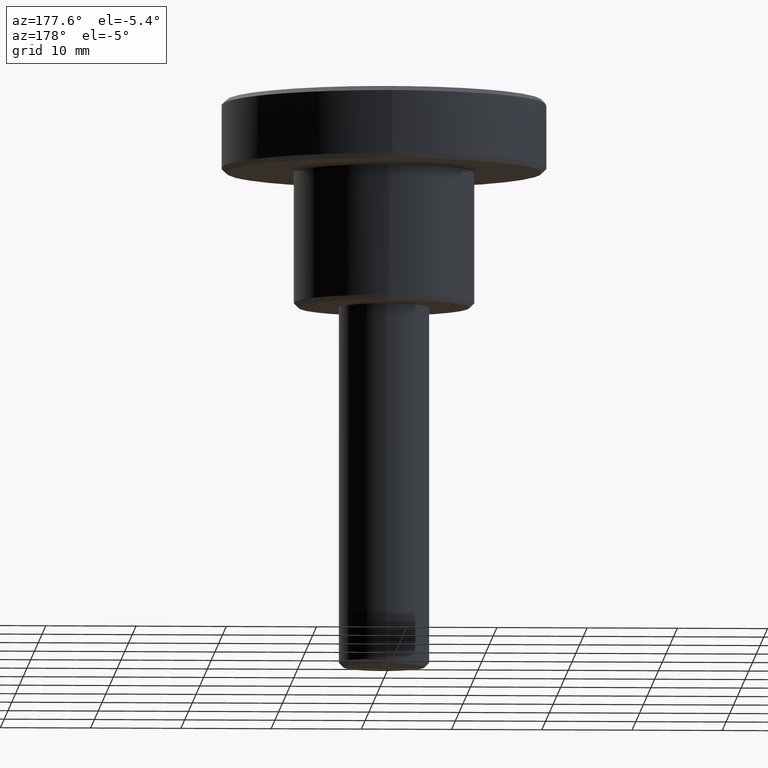
[diagram: clean part render]
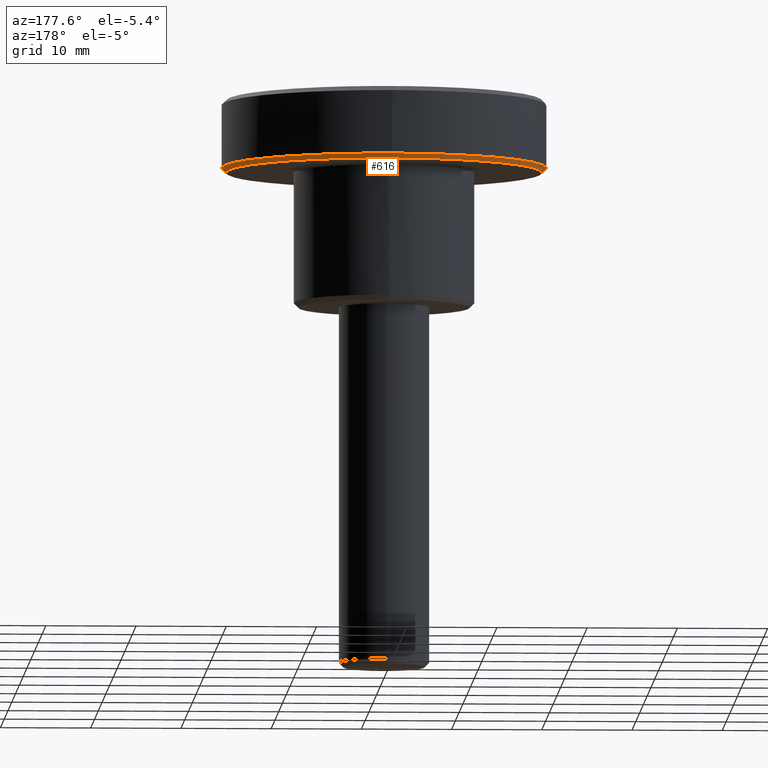
[diagram: same view with one face highlighted and labeled with its STEP entity id]
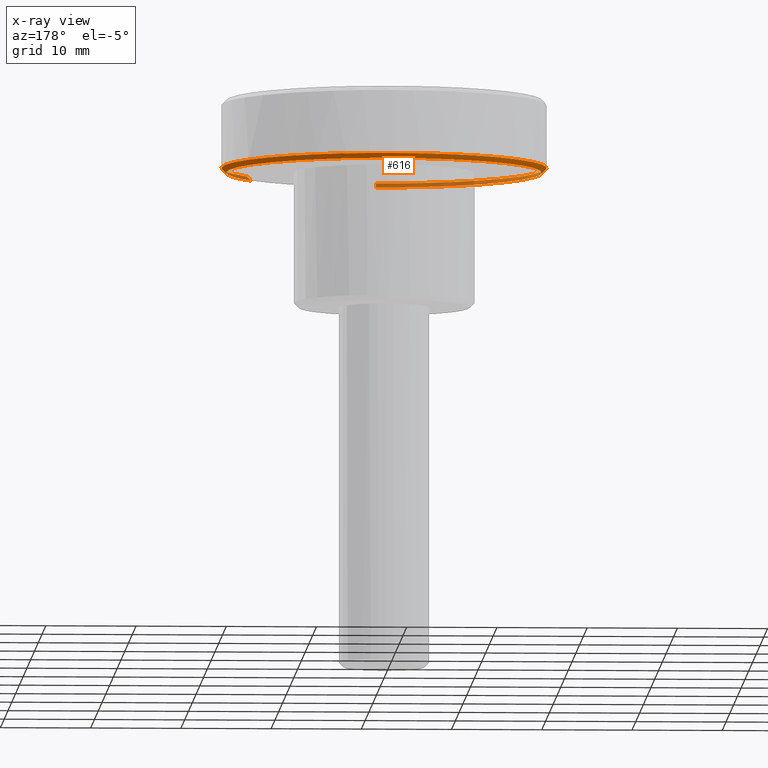
[diagram: x-ray of the same camera — body ghosted, the highlighted face saturated]
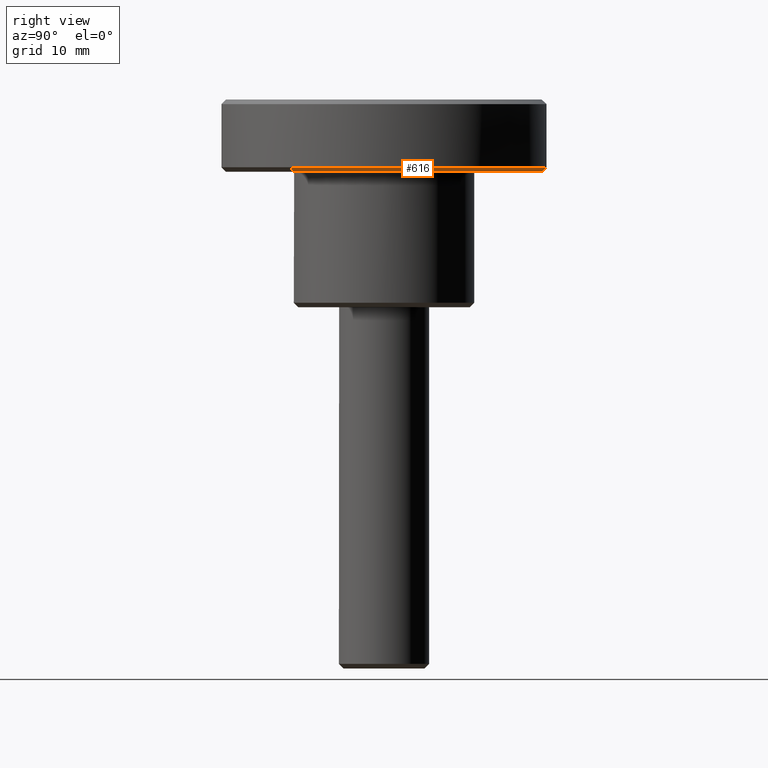
[diagram: same view with one face highlighted and labeled with its STEP entity id]
A machine part, auxiliary view. The second image highlights one B-rep face of the part: STEP entity #616.
The next image is the same camera in x-ray: the body ghosted, the highlighted face saturated — about 17% of this face is hidden behind the body in this view.
A second angle (right view) of the same face is appended — the face is thin or edge-on in the first view.
In plain terms, the highlighted face is a freeform B-spline surface patch.
Its self-contained STEP definition (entity closure, byte-faithful):
#461=CARTESIAN_POINT('',(14.319921146030703,-10.037555211378052,14.987499999999999));
#462=CARTESIAN_POINT('',(17.535725391208214,-5.449778383031156,14.987499999999997));
#463=CARTESIAN_POINT('',(17.486834129584690,0.152605289527813,14.987500000000001));
#464=CARTESIAN_POINT('',(17.334228840056877,17.639439419112509,14.987499999999997));
#465=CARTESIAN_POINT('',(-0.152605289527813,17.486834129584690,14.987500000000001));
#466=CARTESIAN_POINT('',(-17.639439419112509,17.334228840056877,14.987499999999997));
#467=CARTESIAN_POINT('',(-17.486834129584690,-0.152605289527813,14.987500000000001));
#468=CARTESIAN_POINT('',(-17.334228840056877,-17.639439419112509,14.987499999999997));
#469=CARTESIAN_POINT('',(0.152605289527813,-17.486834129584690,14.987500000000001));
#470=CARTESIAN_POINT('',(14.750081750864162,-10.339076482113015,15.512812500000001));
#471=CARTESIAN_POINT('',(18.062486548867700,-5.613485985995353,15.512812500000004));
#472=CARTESIAN_POINT('',(18.012126627294400,0.157189447706803,15.512812500000001));
#473=CARTESIAN_POINT('',(17.854937179587598,18.169316075001209,15.512812499999999));
#474=CARTESIAN_POINT('',(-0.157189447706803,18.012126627294400,15.512812500000001));
#475=CARTESIAN_POINT('',(-18.169316075001209,17.854937179587598,15.512812499999999));
#476=CARTESIAN_POINT('',(-18.012126627294400,-0.157189447706803,15.512812500000001));
#477=CARTESIAN_POINT('',(-17.854937179587598,-18.169316075001209,15.512812499999999));
#478=CARTESIAN_POINT('',(0.157189447706803,-18.012126627294400,15.512812500000001));
#486=(BOUNDED_SURFACE()B_SPLINE_SURFACE(2,1,((#461,#470),(#462,#471),(#463,#472),(#464,#473),(#465,#474),(#466,#475),(#467,#476),(#468,#477),(#469,#478)),.UNSPECIFIED.,.F.,.F.,.U.)B_SPLINE_SURFACE_WITH_KNOTS((3,2,2,2,3),(2,2),(0.0,11.937841974373820,41.782446910308373,71.627051846242935,101.471656782177500),(0.0,1.0),.UNSPECIFIED.)GEOMETRIC_REPRESENTATION_ITEM()RATIONAL_B_SPLINE_SURFACE(((0.859411254969543,0.859411254969543),(0.882842712474619,0.882842712474619),(1.0,1.0),(0.707106781186548,0.707106781186548),(1.0,1.0),(0.707106781186548,0.707106781186548),(1.0,1.0),(0.707106781186548,0.707106781186548),(1.0,1.0)))REPRESENTATION_ITEM('')SURFACE());
#487=CARTESIAN_POINT('',(17.500000000000000,0.0,15.0));
#488=VERTEX_POINT('',#487);
#489=CARTESIAN_POINT('',(14.330156972431750,-10.044730018546430,15.000000000000631));
#490=VERTEX_POINT('',#489);
#491=CARTESIAN_POINT('',(17.500000000000000,0.0,15.0));
#492=CARTESIAN_POINT('',(17.499999999999993,-5.522523042442423,14.999999999999998));
#493=CARTESIAN_POINT('',(14.330156972431745,-10.044730018546428,15.000000000000631));
#501=(BOUNDED_CURVE()B_SPLINE_CURVE(2,(#491,#492,#493),.UNSPECIFIED.,.F.,.U.)B_SPLINE_CURVE_WITH_KNOTS((3,3),(0.0,0.098673726203125),.UNSPECIFIED.)CURVE()GEOMETRIC_REPRESENTATION_ITEM()RATIONAL_B_SPLINE_CURVE((1.0,0.884396538880198,0.860049271925747))REPRESENTATION_ITEM(''));
#502=EDGE_CURVE('',#488,#490,#501,.T.);
#503=ORIENTED_EDGE('',*,*,#502,.F.);
#504=CARTESIAN_POINT('',(-17.500000000000000,0.0,15.0));
#505=VERTEX_POINT('',#504);
#506=CARTESIAN_POINT('',(-17.500000000000000,0.0,15.0));
#507=CARTESIAN_POINT('',(-17.499999999999996,17.499999999999996,14.999999999999995));
#508=CARTESIAN_POINT('',(0.0,17.500000000000000,15.0));
#509=CARTESIAN_POINT('',(17.499999999999996,17.499999999999996,14.999999999999995));
#510=CARTESIAN_POINT('',(17.500000000000000,0.0,15.0));
#518=(BOUNDED_CURVE()B_SPLINE_CURVE(2,(#506,#507,#508,#509,#510),.UNSPECIFIED.,.F.,.U.)B_SPLINE_CURVE_WITH_KNOTS((3,2,3),(0.500000000000000,0.750000000000000,1.0),.UNSPECIFIED.)CURVE()GEOMETRIC_REPRESENTATION_ITEM()RATIONAL_B_SPLINE_CURVE((1.0,0.707106781186548,1.0,0.707106781186548,1.0))REPRESENTATION_ITEM(''));
#519=EDGE_CURVE('',#505,#488,#518,.T.);
#520=ORIENTED_EDGE('',*,*,#519,.F.);
#521=CARTESIAN_POINT('',(0.152714371282345,-17.499333653630728,15.000000000008260));
#522=VERTEX_POINT('',#521);
#523=CARTESIAN_POINT('',(0.152714371282345,-17.499333653630728,15.000000000008264));
#524=CARTESIAN_POINT('',(0.076358639423010,-17.500000000000004,15.000000000000004));
#525=CARTESIAN_POINT('',(0.0,-17.500000000000000,15.0));
#526=CARTESIAN_POINT('',(-17.499999999999996,-17.499999999999996,14.999999999999995));
#527=CARTESIAN_POINT('',(-17.500000000000000,0.0,15.0));
#535=(BOUNDED_CURVE()B_SPLINE_CURVE(2,(#523,#524,#525,#526,#527),.UNSPECIFIED.,.F.,.U.)B_SPLINE_CURVE_WITH_KNOTS((3,2,3),(0.248460105663790,0.250000000000000,0.500000000000000),.UNSPECIFIED.)CURVE()GEOMETRIC_REPRESENTATION_ITEM()RATIONAL_B_SPLINE_CURVE((0.996414028097576,0.998195901564940,1.0,0.707106781186548,1.0))REPRESENTATION_ITEM(''));
#536=EDGE_CURVE('',#522,#505,#535,.T.);
#537=ORIENTED_EDGE('',*,*,#536,.F.);
#538=CARTESIAN_POINT('',(0.157077638971878,-17.999314615155239,15.500000000000149));
#539=VERTEX_POINT('',#538);
#540=CARTESIAN_POINT('',(0.152714371282345,-17.499333653630728,15.000000000008260));
#541=CARTESIAN_POINT('',(0.157077638971878,-17.999314615155239,15.500000000000149));
#542=QUASI_UNIFORM_CURVE('',1,(#540,#541),.UNSPECIFIED.,.F.,.U.);
#543=EDGE_CURVE('',#522,#539,#542,.T.);
#544=ORIENTED_EDGE('',*,*,#543,.T.);
#545=CARTESIAN_POINT('',(-18.0,0.0,15.500000000000000));
#546=VERTEX_POINT('',#545);
#547=CARTESIAN_POINT('',(-18.0,0.0,15.500000000000000));
#548=CARTESIAN_POINT('',(-18.000000000000007,-18.000000000000007,15.500000000000005));
#549=CARTESIAN_POINT('',(0.0,-18.0,15.500000000000000));
#550=CARTESIAN_POINT('',(0.078540314773772,-18.000000000000007,15.499999999999998));
#551=CARTESIAN_POINT('',(0.157077638971878,-17.999314615155246,15.500000000000144));
#559=(BOUNDED_CURVE()B_SPLINE_CURVE(2,(#547,#548,#549,#550,#551),.UNSPECIFIED.,.F.,.U.)B_SPLINE_CURVE_WITH_KNOTS((3,2,3),(0.0,0.250000000000000,0.251539894335010),.UNSPECIFIED.)CURVE()GEOMETRIC_REPRESENTATION_ITEM()RATIONAL_B_SPLINE_CURVE((1.0,0.707106781186547,1.0,0.998195901566346,0.996414028100354))REPRESENTATION_ITEM(''));
#560=EDGE_CURVE('',#546,#539,#559,.T.);
#561=ORIENTED_EDGE('',*,*,#560,.F.);
#562=CARTESIAN_POINT('',(-0.157060157866993,17.999314767693381,15.500000000000000));
#563=VERTEX_POINT('',#562);
#564=CARTESIAN_POINT('',(-0.157060157866993,17.999314767693381,15.500000000000004));
#565=CARTESIAN_POINT('',(-18.000000000000004,17.843619121251677,15.500000000000002));
#566=CARTESIAN_POINT('',(-18.0,0.0,15.500000000000000));
#574=(BOUNDED_CURVE()B_SPLINE_CURVE(2,(#564,#565,#566),.UNSPECIFIED.,.F.,.U.)B_SPLINE_CURVE_WITH_KNOTS((3,3),(0.751539723263430,1.0),.UNSPECIFIED.)CURVE()GEOMETRIC_REPRESENTATION_ITEM()RATIONAL_B_SPLINE_CURVE((0.996414424008193,0.708910679197379,1.0))REPRESENTATION_ITEM(''));
#575=EDGE_CURVE('',#563,#546,#574,.T.);
#576=ORIENTED_EDGE('',*,*,#575,.F.);
#577=CARTESIAN_POINT('',(18.0,0.0,15.500000000000000));
#578=VERTEX_POINT('',#577);
#579=CARTESIAN_POINT('',(18.0,0.0,15.500000000000000));
#580=CARTESIAN_POINT('',(18.000000000000007,18.000000000000007,15.500000000000005));
#581=CARTESIAN_POINT('',(0.0,18.0,15.500000000000000));
#582=CARTESIAN_POINT('',(-0.078531573721610,18.000000000000004,15.500000000000004));
#583=CARTESIAN_POINT('',(-0.157060157866993,17.999314767693381,15.500000000000004));
#591=(BOUNDED_CURVE()B_SPLINE_CURVE(2,(#579,#580,#581,#582,#583),.UNSPECIFIED.,.F.,.U.)B_SPLINE_CURVE_WITH_KNOTS((3,2,3),(0.500000000000000,0.750000000000000,0.751539723263430),.UNSPECIFIED.)CURVE()GEOMETRIC_REPRESENTATION_ITEM()RATIONAL_B_SPLINE_CURVE((1.0,0.707106781186547,1.0,0.998196101989168,0.996414424008193))REPRESENTATION_ITEM(''));
#592=EDGE_CURVE('',#578,#563,#591,.T.);
#593=ORIENTED_EDGE('',*,*,#592,.F.);
#594=CARTESIAN_POINT('',(14.739590028784630,-10.331722304794230,15.500000000000799));
#595=VERTEX_POINT('',#594);
#596=CARTESIAN_POINT('',(14.739590028784635,-10.331722304794228,15.500000000000808));
#597=CARTESIAN_POINT('',(18.000000000000007,-5.680309415088353,15.499999999999996));
#598=CARTESIAN_POINT('',(18.0,0.0,15.500000000000000));
#606=(BOUNDED_CURVE()B_SPLINE_CURVE(2,(#596,#597,#598),.UNSPECIFIED.,.F.,.U.)B_SPLINE_CURVE_WITH_KNOTS((3,3),(0.401326273796802,0.500000000000000),.UNSPECIFIED.)CURVE()GEOMETRIC_REPRESENTATION_ITEM()RATIONAL_B_SPLINE_CURVE((0.860049271925711,0.884396538880112,1.0))REPRESENTATION_ITEM(''));
#607=EDGE_CURVE('',#595,#578,#606,.T.);
#608=ORIENTED_EDGE('',*,*,#607,.F.);
#609=CARTESIAN_POINT('',(14.330156972431750,-10.044730018546430,15.000000000000631));
#610=CARTESIAN_POINT('',(14.739590028784630,-10.331722304794230,15.500000000000799));
#611=QUASI_UNIFORM_CURVE('',1,(#609,#610),.UNSPECIFIED.,.F.,.U.);
#612=EDGE_CURVE('',#490,#595,#611,.T.);
#613=ORIENTED_EDGE('',*,*,#612,.F.);
#614=EDGE_LOOP('',(#503,#520,#537,#544,#561,#576,#593,#608,#613));
#615=FACE_OUTER_BOUND('',#614,.T.);
#616=ADVANCED_FACE('',(#615),#486,.T.);